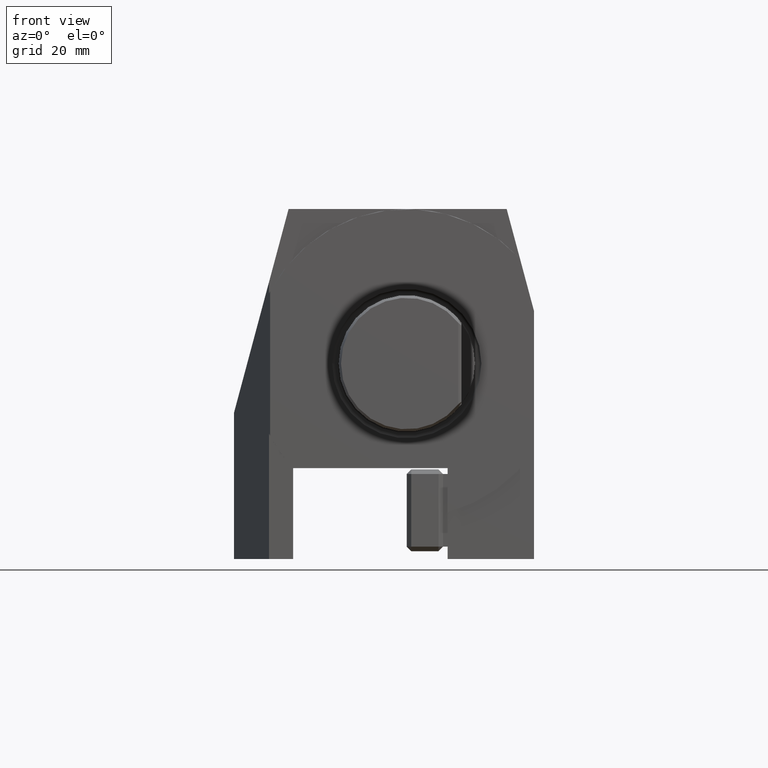
[diagram: clean part render]
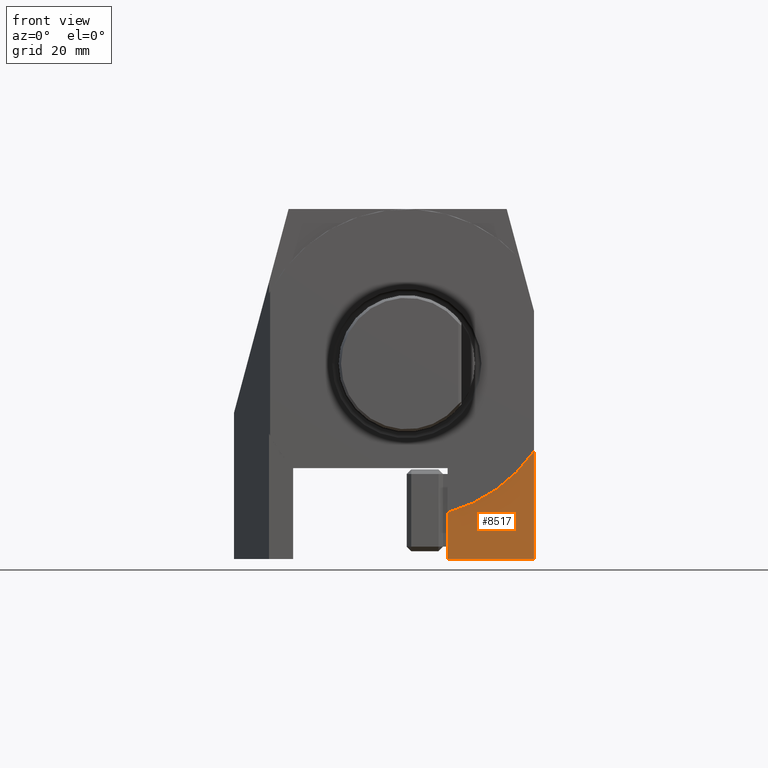
[diagram: same view with one face highlighted and labeled with its STEP entity id]
A machine part, front view. The second image highlights one B-rep face of the part: STEP entity #8517.
In plain terms, the highlighted planar face has unit normal (-0, 1, 0).
Its self-contained STEP definition (entity closure, byte-faithful):
#500 = DIRECTION ( 'NONE',  ( -1.000000000000000000, -1.255391989193741418E-16, 0.000000000000000000 ) ) ;
#2450 = CARTESIAN_POINT ( 'NONE',  ( 28.00000000000000711, 0.5000000000000049960, -43.00000000000000000 ) ) ;
#2521 = VERTEX_POINT ( 'NONE', #5257 ) ;
#3275 = ORIENTED_EDGE ( 'NONE', *, *, #7606, .T. ) ;
#3389 = VERTEX_POINT ( 'NONE', #14733 ) ;
#3658 = VECTOR ( 'NONE', #500, 1000.000000000000000 ) ;
#3920 = DIRECTION ( 'NONE',  ( -1.255391989193741665E-16, 1.000000000000000000, 2.548342952189103877E-19 ) ) ;
#5163 = EDGE_LOOP ( 'NONE', ( #10946, #3275, #8394, #15188 ) ) ;
#5257 = CARTESIAN_POINT ( 'NONE',  ( 28.00000000000000711, 0.5000000000000049960, -19.28730152198590275 ) ) ;
#6436 = DIRECTION ( 'NONE',  ( -1.000000000000000000, -1.307420266820755463E-16, 0.000000000000000000 ) ) ;
#7541 = AXIS2_PLACEMENT_3D ( 'NONE', #12895, #7913, #6436 ) ;
#7606 = EDGE_CURVE ( 'NONE', #2521, #3389, #10217, .T. ) ;
#7659 = CARTESIAN_POINT ( 'NONE',  ( -6.276959945968724348E-17, 0.5000000000000013323, 1.274171476094555309E-19 ) ) ;
#7913 = DIRECTION ( 'NONE',  ( -1.295371175675670281E-16, 1.000000000000000000, -0.000000000000000000 ) ) ;
#8394 = ORIENTED_EDGE ( 'NONE', *, *, #10801, .F. ) ;
#8517 = ADVANCED_FACE ( 'Defeature completata2_74', ( #15311 ), #11651, .F. ) ;
#9485 = CARTESIAN_POINT ( 'NONE',  ( 28.00000000000000711, 0.5000000000000049960, 11.60769515458679635 ) ) ;
#9646 = DIRECTION ( 'NONE',  ( 0.000000000000000000, 0.000000000000000000, -1.000000000000000000 ) ) ;
#10009 = EDGE_CURVE ( 'NONE', #11498, #13955, #13362, .T. ) ;
#10217 = CIRCLE ( 'NONE', #7541, 34.00000000000000000 ) ;
#10801 = EDGE_CURVE ( 'NONE', #13955, #3389, #10951, .T. ) ;
#10946 = ORIENTED_EDGE ( 'NONE', *, *, #13181, .F. ) ;
#10951 = LINE ( 'NONE', #12428, #15393 ) ;
#11268 = AXIS2_PLACEMENT_3D ( 'NONE', #7659, #3920, #14197 ) ;
#11497 = VECTOR ( 'NONE', #9646, 1000.000000000000000 ) ;
#11498 = VERTEX_POINT ( 'NONE', #2450 ) ;
#11651 = PLANE ( 'NONE',  #11268 ) ;
#11894 = CARTESIAN_POINT ( 'NONE',  ( 28.00000000000000711, 0.5000000000000049960, -43.00000000000000000 ) ) ;
#12275 = DIRECTION ( 'NONE',  ( 8.673617379884035472E-17, 0.000000000000000000, 1.000000000000000000 ) ) ;
#12428 = CARTESIAN_POINT ( 'NONE',  ( 9.000000000000000000, 0.5000000000000026645, -43.00000000000000000 ) ) ;
#12895 = CARTESIAN_POINT ( 'NONE',  ( -6.476855878378380986E-17, 0.5000000000000023315, 0.000000000000000000 ) ) ;
#13181 = EDGE_CURVE ( 'NONE', #2521, #11498, #13448, .T. ) ;
#13362 = LINE ( 'NONE', #11894, #3658 ) ;
#13448 = LINE ( 'NONE', #9485, #11497 ) ;
#13955 = VERTEX_POINT ( 'NONE', #15218 ) ;
#14197 = DIRECTION ( 'NONE',  ( -1.000000000000000000, -1.255391989193741665E-16, 0.000000000000000000 ) ) ;
#14733 = CARTESIAN_POINT ( 'NONE',  ( 9.000000000000001776, 0.5000000000000026645, -32.78719262151000180 ) ) ;
#15188 = ORIENTED_EDGE ( 'NONE', *, *, #10009, .F. ) ;
#15218 = CARTESIAN_POINT ( 'NONE',  ( 9.000000000000000000, 0.5000000000000026645, -43.00000000000000000 ) ) ;
#15311 = FACE_OUTER_BOUND ( 'NONE', #5163, .T. ) ;
#15393 = VECTOR ( 'NONE', #12275, 1000.000000000000000 ) ;